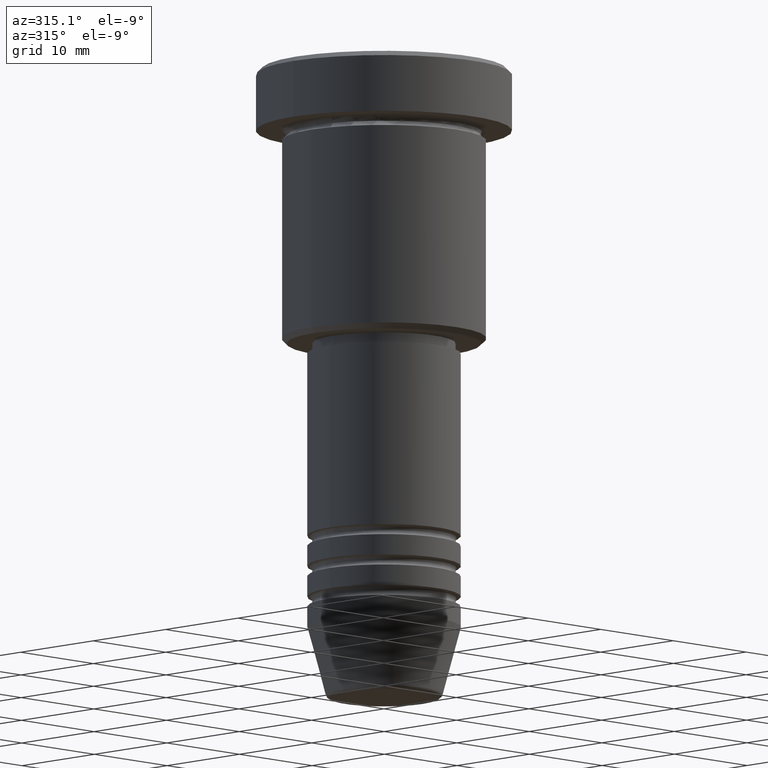
[diagram: clean part render]
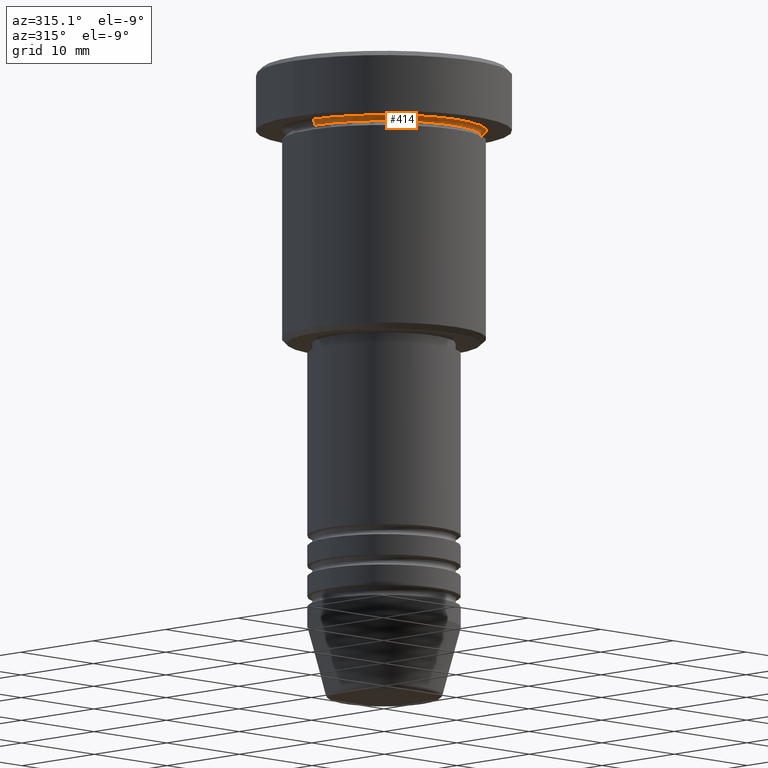
[diagram: same view with one face highlighted and labeled with its STEP entity id]
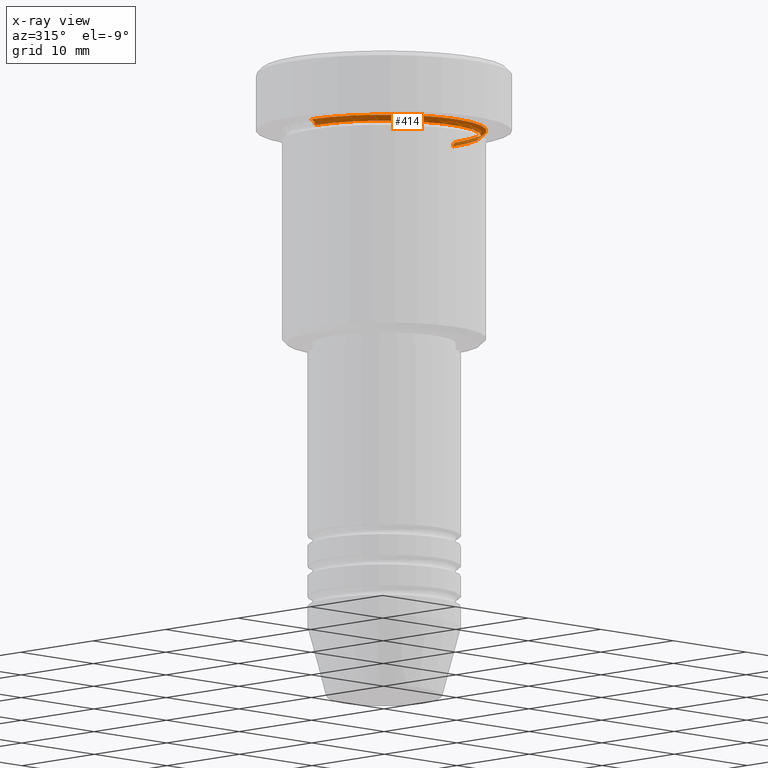
[diagram: x-ray of the same camera — body ghosted, the highlighted face saturated]
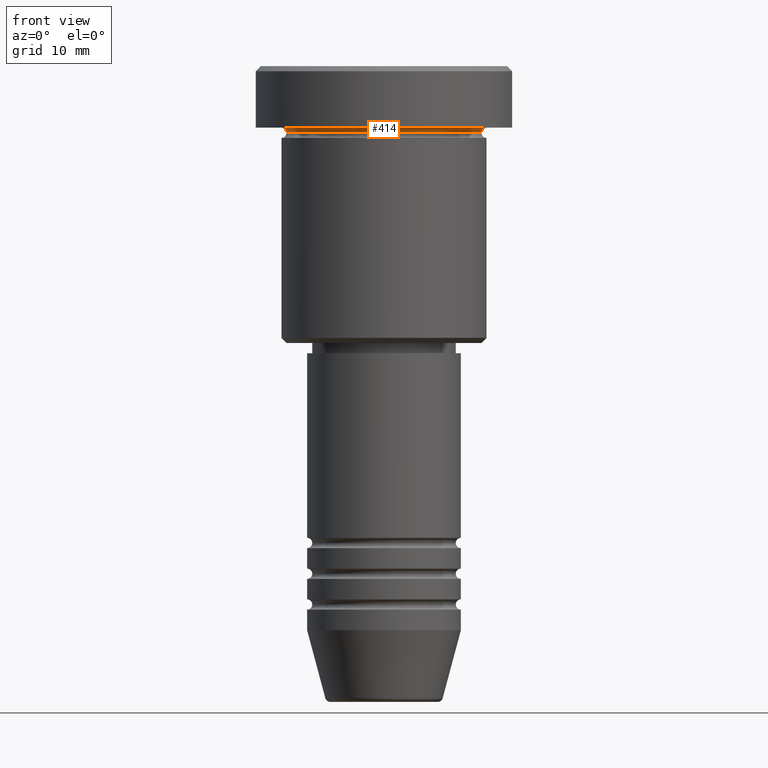
[diagram: same view with one face highlighted and labeled with its STEP entity id]
A machine part, auxiliary view. The second image highlights one B-rep face of the part: STEP entity #414.
The next image is the same camera in x-ray: the body ghosted, the highlighted face saturated — about 8% of this face is hidden behind the body in this view.
A second angle (front view) of the same face is appended — the face is thin or edge-on in the first view.
In plain terms, the highlighted toroidal blend (fillet) surface has major radius 10 mm and minor (blend) radius 0.5 mm.
Its self-contained STEP definition (entity closure, byte-faithful):
#13 = ORIENTED_EDGE ( 'NONE', *, *, #413, .T. ) ;
#31 = CARTESIAN_POINT ( 'NONE',  ( -10.00000000000000000, 0.000000000000000000, -6.499999999999997335 ) ) ;
#44 = CIRCLE ( 'NONE', #312, 0.5000000000000004441 ) ;
#61 = DIRECTION ( 'NONE',  ( -1.000000000000000000, 0.000000000000000000, 0.000000000000000000 ) ) ;
#79 = EDGE_CURVE ( 'NONE', #181, #548, #1014, .T. ) ;
#141 = CARTESIAN_POINT ( 'NONE',  ( 0.000000000000000000, 0.000000000000000000, -6.499999999999997335 ) ) ;
#170 = VERTEX_POINT ( 'NONE', #796 ) ;
#181 = VERTEX_POINT ( 'NONE', #442 ) ;
#243 = CARTESIAN_POINT ( 'NONE',  ( 0.000000000000000000, 0.000000000000000000, -6.499999999999997335 ) ) ;
#244 = CARTESIAN_POINT ( 'NONE',  ( 10.00000000000000000, 1.224646799147353256E-15, -5.999999999999996447 ) ) ;
#300 = DIRECTION ( 'NONE',  ( -1.000000000000000000, 0.000000000000000000, 0.000000000000000000 ) ) ;
#312 = AXIS2_PLACEMENT_3D ( 'NONE', #31, #391, #648 ) ;
#361 = VERTEX_POINT ( 'NONE', #823 ) ;
#391 = DIRECTION ( 'NONE',  ( -0.000000000000000000, -1.000000000000000000, -0.000000000000000000 ) ) ;
#395 = AXIS2_PLACEMENT_3D ( 'NONE', #475, #843, #300 ) ;
#413 = EDGE_CURVE ( 'NONE', #361, #170, #996, .T. ) ;
#414 = ADVANCED_FACE ( 'NONE', ( #474 ), #836, .F. ) ;
#442 = CARTESIAN_POINT ( 'NONE',  ( -10.00000000000000000, 0.000000000000000000, -5.999999999999996447 ) ) ;
#468 = AXIS2_PLACEMENT_3D ( 'NONE', #243, #502, #61 ) ;
#474 = FACE_OUTER_BOUND ( 'NONE', #725, .T. ) ;
#475 = CARTESIAN_POINT ( 'NONE',  ( 0.000000000000000000, 0.000000000000000000, -5.999999999999996447 ) ) ;
#502 = DIRECTION ( 'NONE',  ( 0.000000000000000000, 0.000000000000000000, -1.000000000000000000 ) ) ;
#548 = VERTEX_POINT ( 'NONE', #244 ) ;
#645 = DIRECTION ( 'NONE',  ( 1.000000000000000000, 0.000000000000000000, 0.000000000000000000 ) ) ;
#648 = DIRECTION ( 'NONE',  ( 0.000000000000000000, 0.000000000000000000, -1.000000000000000000 ) ) ;
#662 = EDGE_CURVE ( 'NONE', #170, #548, #773, .T. ) ;
#710 = ORIENTED_EDGE ( 'NONE', *, *, #844, .F. ) ;
#722 = CARTESIAN_POINT ( 'NONE',  ( 10.00000000000000000, 1.224646799147353256E-15, -6.499999999999997335 ) ) ;
#725 = EDGE_LOOP ( 'NONE', ( #13, #947, #801, #710 ) ) ;
#773 = CIRCLE ( 'NONE', #1042, 0.5000000000000004441 ) ;
#796 = CARTESIAN_POINT ( 'NONE',  ( 9.500000000000000000, 0.000000000000000000, -6.499999999999997335 ) ) ;
#801 = ORIENTED_EDGE ( 'NONE', *, *, #79, .F. ) ;
#804 = DIRECTION ( 'NONE',  ( -1.224646799147353207E-16, 1.000000000000000000, 0.000000000000000000 ) ) ;
#823 = CARTESIAN_POINT ( 'NONE',  ( -9.500000000000000000, 1.194030629168669469E-15, -6.499999999999997335 ) ) ;
#836 = TOROIDAL_SURFACE ( 'NONE', #468, 10.00000000000000000, 0.5000000000000000000 ) ;
#843 = DIRECTION ( 'NONE',  ( -0.000000000000000000, -0.000000000000000000, 1.000000000000000000 ) ) ;
#844 = EDGE_CURVE ( 'NONE', #361, #181, #44, .T. ) ;
#856 = AXIS2_PLACEMENT_3D ( 'NONE', #141, #1148, #645 ) ;
#947 = ORIENTED_EDGE ( 'NONE', *, *, #662, .T. ) ;
#996 = CIRCLE ( 'NONE', #856, 9.500000000000000000 ) ;
#1014 = CIRCLE ( 'NONE', #395, 10.00000000000000000 ) ;
#1042 = AXIS2_PLACEMENT_3D ( 'NONE', #722, #804, #1109 ) ;
#1109 = DIRECTION ( 'NONE',  ( -1.000000000000000000, -1.224646799147353454E-16, 0.000000000000000000 ) ) ;
#1148 = DIRECTION ( 'NONE',  ( -0.000000000000000000, -0.000000000000000000, 1.000000000000000000 ) ) ;